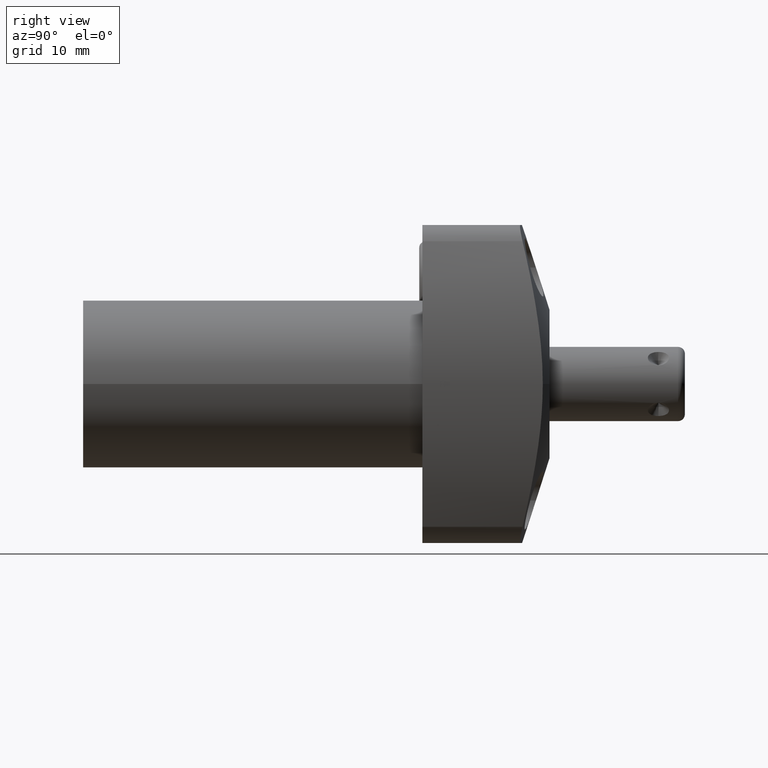
[diagram: clean part render]
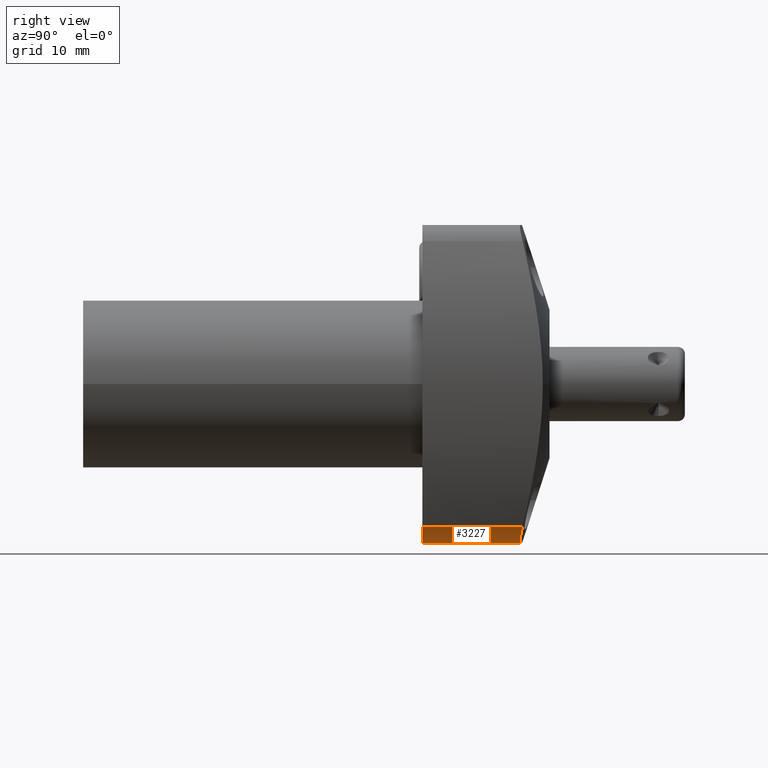
[diagram: same view with one face highlighted and labeled with its STEP entity id]
A machine part, right view. The second image highlights one B-rep face of the part: STEP entity #3227.
In plain terms, the highlighted cylindrical surface (edge-blend (fillet) strip) has radius 3.9624 mm, axis along (0, -1, 0).
Its self-contained STEP definition (entity closure, byte-faithful):
#251=CARTESIAN_POINT('',(2.507083328705E-1,5.776484036192E-1,-9.375E-1));
#252=CARTESIAN_POINT('',(2.608785695064E-1,5.767947031235E-1,-9.375E-1));
#253=CARTESIAN_POINT('',(2.812064559462E-1,5.756167990068E-1,
-9.355044504778E-1));
#254=CARTESIAN_POINT('',(3.104991803618E-1,5.754730680303E-1,
-9.266611651686E-1));
#255=CARTESIAN_POINT('',(3.375038007091E-1,5.769498652329E-1,
-9.123186356659E-1));
#256=CARTESIAN_POINT('',(3.612653671567E-1,5.800200476393E-1,
-8.929738732240E-1));
#257=CARTESIAN_POINT('',(3.809131887893E-1,5.846392215521E-1,
-8.692509467708E-1));
#258=CARTESIAN_POINT('',(3.907344548189E-1,5.887037280224E-1,
-8.510378582750E-1));
#259=CARTESIAN_POINT('',(3.947095631500E-1,5.909618291525E-1,
-8.414970472441E-1));
#264=CARTESIAN_POINT('',(3.947095631500E-1,5.909618291525E-1,
-8.414970472441E-1));
#1170=CARTESIAN_POINT('',(2.507083328705E-1,5.776484036192E-1,-9.375E-1));
#1175=DIRECTION('',(0.E0,-1.E0,0.E0));
#1176=VECTOR('',#1175,5.776484036192E-1);
#1177=CARTESIAN_POINT('',(2.507083328705E-1,5.776484036192E-1,-9.375E-1));
#1178=LINE('',#1177,#1176);
#1182=CARTESIAN_POINT('',(2.507083328705E-1,0.E0,-7.815E-1));
#1183=DIRECTION('',(0.E0,-1.E0,0.E0));
#1184=DIRECTION('',(0.E0,0.E0,-1.E0));
#1185=AXIS2_PLACEMENT_3D('',#1182,#1183,#1184);
#1190=DIRECTION('',(0.E0,-1.E0,0.E0));
#1191=VECTOR('',#1190,5.909618291525E-1);
#1192=CARTESIAN_POINT('',(3.947095631500E-1,5.909618291525E-1,
-8.414970472441E-1));
#1193=LINE('',#1192,#1191);
#2101=VERTEX_POINT('',#1170);
#2112=VERTEX_POINT('',#264);
#2234=CARTESIAN_POINT('',(2.507083328705E-1,0.E0,-9.375E-1));
#2235=CARTESIAN_POINT('',(3.947095631500E-1,0.E0,-8.414970472441E-1));
#2236=VERTEX_POINT('',#2234);
#2237=VERTEX_POINT('',#2235);
#3215=CARTESIAN_POINT('',(2.507083328705E-1,7.556228986350E-1,-7.815E-1));
#3216=DIRECTION('',(0.E0,-1.E0,0.E0));
#3217=DIRECTION('',(0.E0,0.E0,-1.E0));
#3218=AXIS2_PLACEMENT_3D('',#3215,#3216,#3217);
#3219=CYLINDRICAL_SURFACE('',#3218,1.56E-1);
#3220=ORIENTED_EDGE('',*,*,#2532,.F.);
#3221=ORIENTED_EDGE('',*,*,#3210,.T.);
#3222=ORIENTED_EDGE('',*,*,#2651,.T.);
#3224=ORIENTED_EDGE('',*,*,#3223,.F.);
#3225=EDGE_LOOP('',(#3220,#3221,#3222,#3224));
#3226=FACE_OUTER_BOUND('',#3225,.F.);
#260=B_SPLINE_CURVE_WITH_KNOTS('',3,(#251,#252,#253,#254,#255,#256,#257,#258,
#259),.UNSPECIFIED.,.F.,.F.,(4,1,1,1,1,1,4),(0.E0,1.666666666667E-1,
3.333333333333E-1,5.E-1,6.666666666667E-1,8.333333333333E-1,1.E0),
.UNSPECIFIED.);
#1186=CIRCLE('',#1185,1.56E-1);
#2532=EDGE_CURVE('',#2101,#2112,#260,.T.);
#2651=EDGE_CURVE('',#2236,#2237,#1186,.T.);
#3210=EDGE_CURVE('',#2101,#2236,#1178,.T.);
#3223=EDGE_CURVE('',#2112,#2237,#1193,.T.);
#3227=ADVANCED_FACE('',(#3226),#3219,.T.);